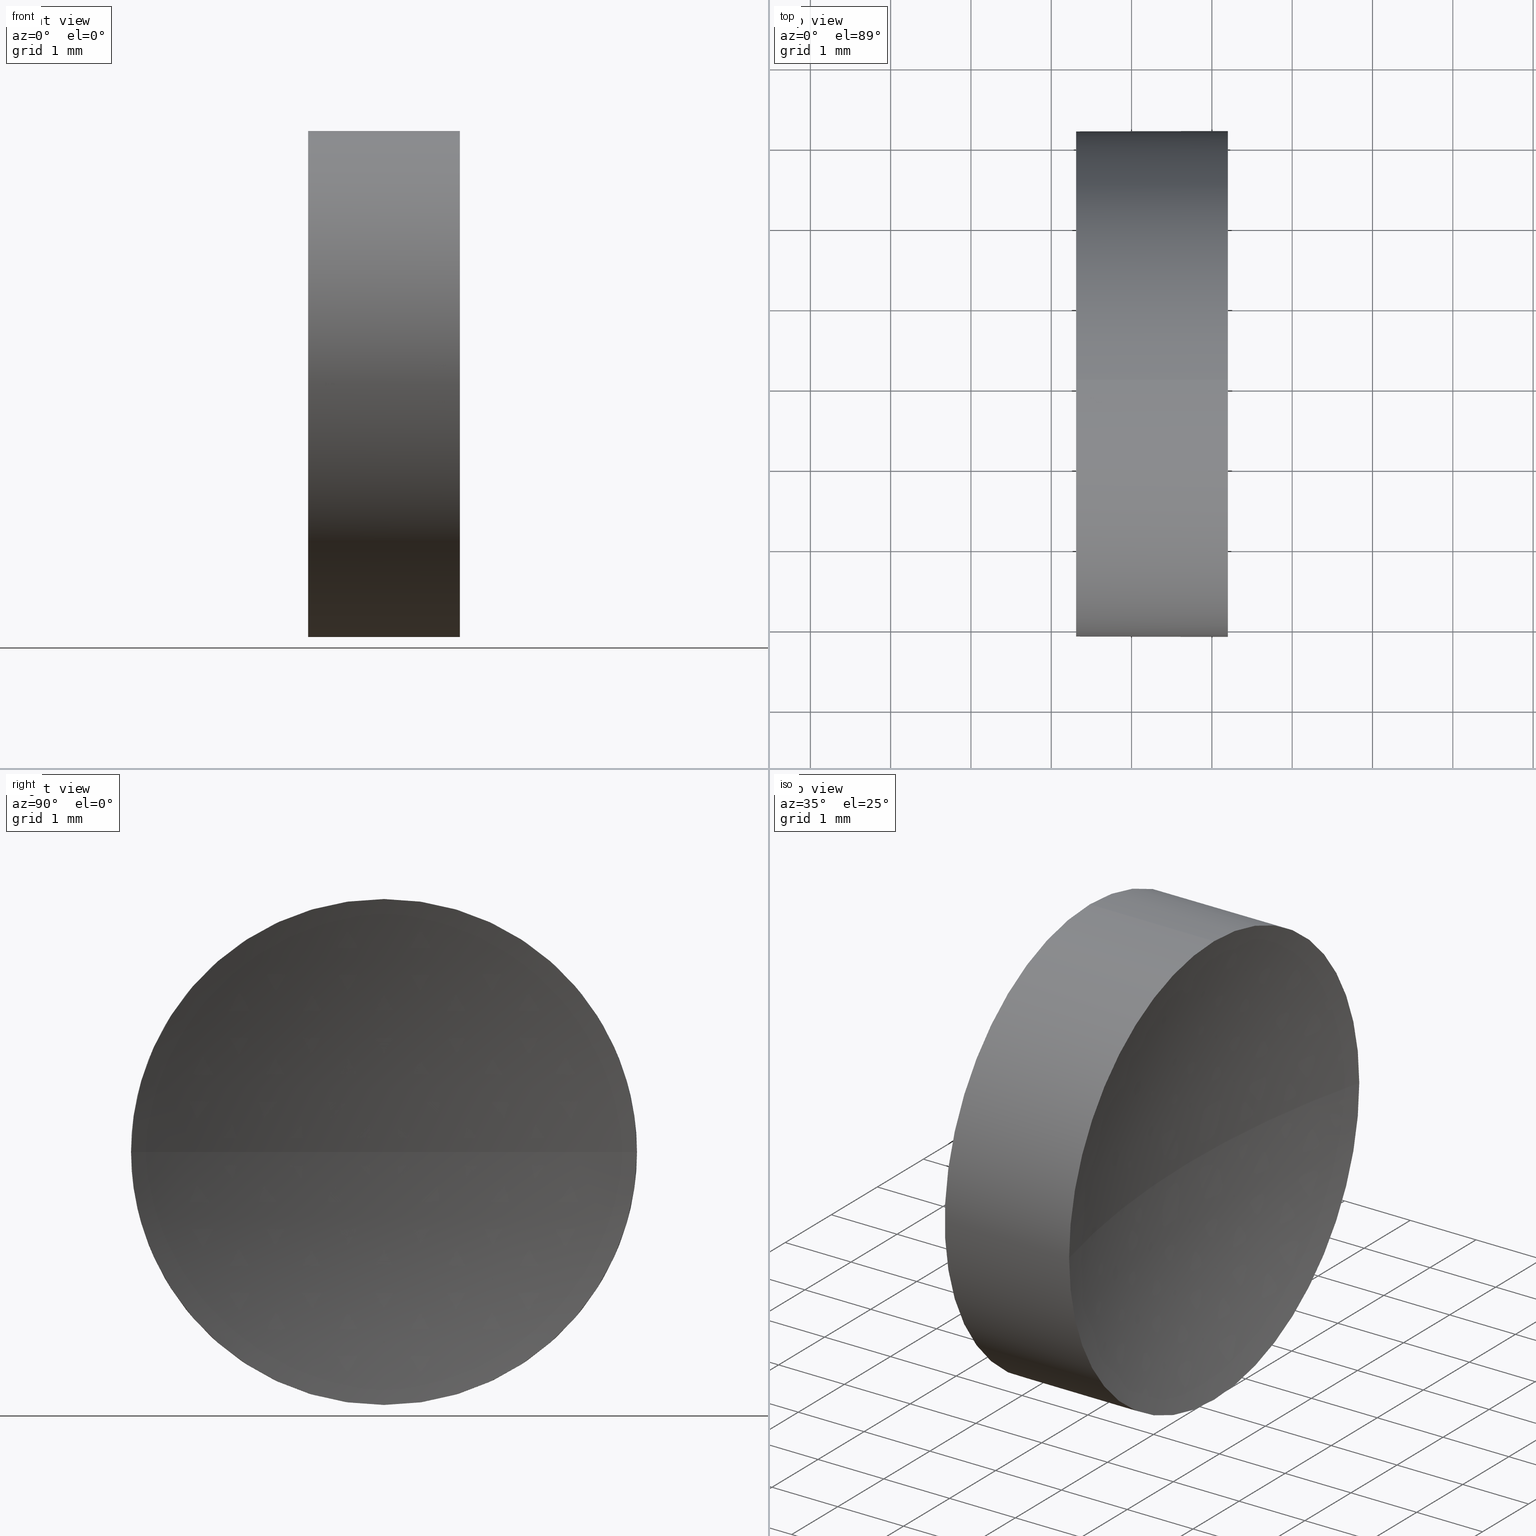
[diagram: canonical four-view strip — front | top / right | iso, engineering-drawing reading convention]
A machine part, canonical four-view strip (front | top / right | iso — engineering-drawing reading convention). The complete STEP part file that produces these views, byte-faithful:
ISO-10303-21;
HEADER;
FILE_DESCRIPTION (( 'STEP AP214' ),
    '1' );
FILE_NAME ('120128.STEP',
    '2019-06-19T02:02:49',
    ( '' ),
    ( '' ),
    'SwSTEP 2.0',
    'SolidWorks 2016',
    '' );
FILE_SCHEMA (( 'AUTOMOTIVE_DESIGN' ));
ENDSEC;

DATA;
#1 = UNCERTAINTY_MEASURE_WITH_UNIT (LENGTH_MEASURE( 1.000000000000000100E-005 ), #34, 'distance_accuracy_value', 'NONE');
#2 = STYLED_ITEM ( 'NONE', ( #180 ), #156 ) ;
#3 = VERTEX_POINT ( 'NONE', #86 ) ;
#4 = CARTESIAN_POINT ( 'NONE',  ( 36.71926883257449200, 13.03112609140304200, 0.0000000000000000000 ) ) ;
#5 = UNCERTAINTY_MEASURE_WITH_UNIT (LENGTH_MEASURE( 1.000000000000000100E-005 ), #35, 'distance_accuracy_value', 'NONE');
#6 = PLANE ( 'NONE',  #14 ) ;
#7 = CYLINDRICAL_SURFACE ( 'NONE', #36, 3.149999999999999900 ) ;
#8 = FILL_AREA_STYLE ('',( #141 ) ) ;
#9 = SPHERICAL_SURFACE ( 'NONE', #43, 12.90999999999999800 ) ;
#10 = ADVANCED_FACE ( 'NONE', ( #91 ), #9, .F. ) ;
#11 = VERTEX_POINT ( 'NONE', #151 ) ;
#12 = MECHANICAL_DESIGN_GEOMETRIC_PRESENTATION_REPRESENTATION (  '', ( #82 ), #153 ) ;
#13 = UNCERTAINTY_MEASURE_WITH_UNIT (LENGTH_MEASURE( 1.000000000000000100E-005 ), #100, 'distance_accuracy_value', 'NONE');
#14 = AXIS2_PLACEMENT_3D ( 'NONE', #122, #63, #22 ) ;
#15 = EDGE_LOOP ( 'NONE', ( #181, #186, #124, #106, #93 ) ) ;
#16 = DIRECTION ( 'NONE',  ( 0.0000000000000000000, 0.0000000000000000000, 1.000000000000000000 ) ) ;
#17 = CARTESIAN_POINT ( 'NONE',  ( 24.19946052733276100, 16.18112609140304100, 3.857637417314165200E-016 ) ) ;
#18 = SURFACE_STYLE_FILL_AREA ( #8 ) ;
#19 = AXIS2_PLACEMENT_3D ( 'NONE', #78, #162, #163 ) ;
#20 = DIRECTION ( 'NONE',  ( 0.0000000000000000000, 0.0000000000000000000, 1.000000000000000000 ) ) ;
#21 =( NAMED_UNIT ( * ) PLANE_ANGLE_UNIT ( ) SI_UNIT ( $, .RADIAN. ) );
#22 = DIRECTION ( 'NONE',  ( 0.0000000000000000000, 0.0000000000000000000, -1.000000000000000000 ) ) ;
#23 = VERTEX_POINT ( 'NONE', #84 ) ;
#24 =( NAMED_UNIT ( * ) PLANE_ANGLE_UNIT ( ) SI_UNIT ( $, .RADIAN. ) );
#25 = EDGE_CURVE ( 'NONE', #62, #32, #172, .T. ) ;
#26 = CIRCLE ( 'NONE', #128, 3.149999999999998100 ) ;
#27 =( GEOMETRIC_REPRESENTATION_CONTEXT ( 3 ) GLOBAL_UNCERTAINTY_ASSIGNED_CONTEXT ( ( #1 ) ) GLOBAL_UNIT_ASSIGNED_CONTEXT ( ( #34, #24, #79 ) ) REPRESENTATION_CONTEXT ( 'NONE', 'WORKASPACE' ) );
#28 = ORIENTED_EDGE ( 'NONE', *, *, #53, .F. ) ;
#29 = EDGE_CURVE ( 'NONE', #170, #69, #140, .T. ) ;
#30 = CARTESIAN_POINT ( 'NONE',  ( 23.80926883257449600, 13.03112609140304200, 0.0000000000000000000 ) ) ;
#31 = PRESENTATION_LAYER_ASSIGNMENT (  '', '', ( #2 ) ) ;
#32 = VERTEX_POINT ( 'NONE', #30 ) ;
#33 = DIRECTION ( 'NONE',  ( -1.000000000000000000, -0.0000000000000000000, -0.0000000000000000000 ) ) ;
#34 =( LENGTH_UNIT ( ) NAMED_UNIT ( * ) SI_UNIT ( .MILLI., .METRE. ) );
#35 =( LENGTH_UNIT ( ) NAMED_UNIT ( * ) SI_UNIT ( .MILLI., .METRE. ) );
#36 = AXIS2_PLACEMENT_3D ( 'NONE', #99, #72, #176 ) ;
#37 = SURFACE_STYLE_USAGE ( .BOTH. , #179 ) ;
#38 = ORIENTED_EDGE ( 'NONE', *, *, #136, .F. ) ;
#39 = EDGE_CURVE ( 'NONE', #62, #11, #127, .T. ) ;
#40 = ORIENTED_EDGE ( 'NONE', *, *, #53, .T. ) ;
#41 = ORIENTED_EDGE ( 'NONE', *, *, #94, .T. ) ;
#42 = CARTESIAN_POINT ( 'NONE',  ( 20.68403063513288800, 13.03112609140304000, 0.0000000000000000000 ) ) ;
#43 = AXIS2_PLACEMENT_3D ( 'NONE', #54, #115, #55 ) ;
#44 = DIRECTION ( 'NONE',  ( -1.000000000000000000, -0.0000000000000000000, -0.0000000000000000000 ) ) ;
#45 = ORIENTED_EDGE ( 'NONE', *, *, #39, .F. ) ;
#46 = AXIS2_PLACEMENT_3D ( 'NONE', #134, #107, #16 ) ;
#47 = SHAPE_DEFINITION_REPRESENTATION ( #143, #156 ) ;
#48 = DIRECTION ( 'NONE',  ( -1.000000000000000000, -0.0000000000000000000, -0.0000000000000000000 ) ) ;
#49 = FILL_AREA_STYLE_COLOUR ( '', #67 ) ;
#50 = ADVANCED_FACE ( 'NONE', ( #92 ), #83, .T. ) ;
#51 = EDGE_CURVE ( 'NONE', #3, #23, #26, .T. ) ;
#52 = FACE_OUTER_BOUND ( 'NONE', #178, .T. ) ;
#53 = EDGE_CURVE ( 'NONE', #170, #32, #90, .T. ) ;
#54 = CARTESIAN_POINT ( 'NONE',  ( 36.71926883257449200, 13.03112609140304200, 0.0000000000000000000 ) ) ;
#55 = DIRECTION ( 'NONE',  ( 0.0000000000000000000, -1.000000000000000000, 0.0000000000000000000 ) ) ;
#56 = FACE_OUTER_BOUND ( 'NONE', #102, .T. ) ;
#57 = DIRECTION ( 'NONE',  ( 0.0000000000000000000, 0.0000000000000000000, -1.000000000000000000 ) ) ;
#58 = DIRECTION ( 'NONE',  ( -1.000000000000000000, -0.0000000000000000000, -0.0000000000000000000 ) ) ;
#59 = FACE_OUTER_BOUND ( 'NONE', #15, .T. ) ;
#60 = DIRECTION ( 'NONE',  ( 0.0000000000000000000, 0.0000000000000000000, 1.000000000000000000 ) ) ;
#61 = DIRECTION ( 'NONE',  ( 0.0000000000000000000, 0.0000000000000000000, 1.000000000000000000 ) ) ;
#62 = VERTEX_POINT ( 'NONE', #17 ) ;
#63 = DIRECTION ( 'NONE',  ( 1.000000000000000000, 0.0000000000000000000, 0.0000000000000000000 ) ) ;
#64 = APPLICATION_CONTEXT ( 'automotive_design' ) ;
#65 = ORIENTED_EDGE ( 'NONE', *, *, #126, .T. ) ;
#66 = AXIS2_PLACEMENT_3D ( 'NONE', #42, #44, #95 ) ;
#67 = COLOUR_RGB ( '',1.000000000000000000, 1.000000000000000000, 1.000000000000000000 ) ;
#68 = CIRCLE ( 'NONE', #142, 3.149999999999998100 ) ;
#69 = VERTEX_POINT ( 'NONE', #98 ) ;
#70 = CARTESIAN_POINT ( 'NONE',  ( 24.19946052733276100, 13.03112609140304000, 0.0000000000000000000 ) ) ;
#71 = PRODUCT_DEFINITION ( 'δ֪', '', #80, #109 ) ;
#72 = DIRECTION ( 'NONE',  ( -1.000000000000000000, -0.0000000000000000000, -0.0000000000000000000 ) ) ;
#73 = DIRECTION ( 'NONE',  ( 0.0000000000000000000, -1.000000000000000000, 0.0000000000000000000 ) ) ;
#74 =( NAMED_UNIT ( * ) SI_UNIT ( $, .STERADIAN. ) SOLID_ANGLE_UNIT ( ) );
#75 = LINE ( 'NONE', #155, #182 ) ;
#76 = CARTESIAN_POINT ( 'NONE',  ( 22.30926883257449200, 13.03112609140304000, 0.0000000000000000000 ) ) ;
#77 = SURFACE_SIDE_STYLE ('',( #150 ) ) ;
#78 = CARTESIAN_POINT ( 'NONE',  ( 0.0000000000000000000, 0.0000000000000000000, 0.0000000000000000000 ) ) ;
#79 =( NAMED_UNIT ( * ) SI_UNIT ( $, .STERADIAN. ) SOLID_ANGLE_UNIT ( ) );
#80 = PRODUCT_DEFINITION_FORMATION_WITH_SPECIFIED_SOURCE ( '�κ�', '', #168, .NOT_KNOWN. ) ;
#81 = ADVANCED_FACE ( 'NONE', ( #59 ), #7, .T. ) ;
#82 = STYLED_ITEM ( 'NONE', ( #131 ), #184 ) ;
#83 = CYLINDRICAL_SURFACE ( 'NONE', #66, 3.149999999999999900 ) ;
#84 = CARTESIAN_POINT ( 'NONE',  ( 22.30926883257449200, 13.03112609140304000, -3.149999999999998100 ) ) ;
#85 = SPHERICAL_SURFACE ( 'NONE', #148, 12.90999999999999800 ) ;
#86 = CARTESIAN_POINT ( 'NONE',  ( 22.30926883257449200, 13.03112609140304000, 3.149999999999998100 ) ) ;
#87 = DIRECTION ( 'NONE',  ( 0.0000000000000000000, 0.0000000000000000000, 1.000000000000000000 ) ) ;
#88 = VECTOR ( 'NONE', #48, 1000.000000000000000 ) ;
#89 = DIRECTION ( 'NONE',  ( -1.000000000000000000, -0.0000000000000000000, -0.0000000000000000000 ) ) ;
#90 = CIRCLE ( 'NONE', #120, 12.90999999999999800 ) ;
#91 = FACE_OUTER_BOUND ( 'NONE', #108, .T. ) ;
#92 = FACE_OUTER_BOUND ( 'NONE', #161, .T. ) ;
#93 = ORIENTED_EDGE ( 'NONE', *, *, #136, .T. ) ;
#94 = EDGE_CURVE ( 'NONE', #23, #3, #68, .T. ) ;
#95 = DIRECTION ( 'NONE',  ( 0.0000000000000000000, 0.0000000000000000000, 1.000000000000000000 ) ) ;
#96 = DIRECTION ( 'NONE',  ( 0.0000000000000000000, 0.0000000000000000000, 1.000000000000000000 ) ) ;
#97 = DIRECTION ( 'NONE',  ( 0.0000000000000000000, 0.0000000000000000000, 1.000000000000000000 ) ) ;
#98 = CARTESIAN_POINT ( 'NONE',  ( 24.19946052733276100, 13.03112609140304000, 3.150000000000001200 ) ) ;
#99 = CARTESIAN_POINT ( 'NONE',  ( 20.68403063513288800, 13.03112609140304000, 0.0000000000000000000 ) ) ;
#100 =( LENGTH_UNIT ( ) NAMED_UNIT ( * ) SI_UNIT ( .MILLI., .METRE. ) );
#101 = PRODUCT_CONTEXT ( 'NONE', #64, 'mechanical' ) ;
#102 = EDGE_LOOP ( 'NONE', ( #103, #38, #112, #40 ) ) ;
#103 = ORIENTED_EDGE ( 'NONE', *, *, #25, .F. ) ;
#104 = ORIENTED_EDGE ( 'NONE', *, *, #123, .F. ) ;
#105 = MECHANICAL_DESIGN_GEOMETRIC_PRESENTATION_REPRESENTATION (  '', ( #2 ), #27 ) ;
#106 = ORIENTED_EDGE ( 'NONE', *, *, #183, .F. ) ;
#107 = DIRECTION ( 'NONE',  ( -1.000000000000000000, -0.0000000000000000000, -0.0000000000000000000 ) ) ;
#108 = EDGE_LOOP ( 'NONE', ( #45, #149, #28, #144 ) ) ;
#109 = PRODUCT_DEFINITION_CONTEXT ( 'detailed design', #177, 'design' ) ;
#110 = FILL_AREA_STYLE ('',( #49 ) ) ;
#111 =( NAMED_UNIT ( * ) PLANE_ANGLE_UNIT ( ) SI_UNIT ( $, .RADIAN. ) );
#112 = ORIENTED_EDGE ( 'NONE', *, *, #29, .F. ) ;
#113 = CIRCLE ( 'NONE', #146, 3.150000000000001700 ) ;
#114 = LINE ( 'NONE', #160, #88 ) ;
#115 = DIRECTION ( 'NONE',  ( 0.0000000000000000000, 0.0000000000000000000, 1.000000000000000000 ) ) ;
#116 = DIRECTION ( 'NONE',  ( -1.000000000000000000, -0.0000000000000000000, -0.0000000000000000000 ) ) ;
#117 = DIRECTION ( 'NONE',  ( -1.000000000000000000, 0.0000000000000000000, 0.0000000000000000000 ) ) ;
#118 = CIRCLE ( 'NONE', #132, 3.150000000000001700 ) ;
#119 = DIRECTION ( 'NONE',  ( -1.000000000000000000, -0.0000000000000000000, -0.0000000000000000000 ) ) ;
#120 = AXIS2_PLACEMENT_3D ( 'NONE', #139, #57, #117 ) ;
#121 = CARTESIAN_POINT ( 'NONE',  ( 24.19946052733276100, 13.03112609140304000, 0.0000000000000000000 ) ) ;
#122 = CARTESIAN_POINT ( 'NONE',  ( 22.30926883257449200, 13.03112609140304000, 0.0000000000000000000 ) ) ;
#123 = EDGE_CURVE ( 'NONE', #11, #23, #75, .T. ) ;
#124 = ORIENTED_EDGE ( 'NONE', *, *, #51, .F. ) ;
#125 =( NAMED_UNIT ( * ) SI_UNIT ( $, .STERADIAN. ) SOLID_ANGLE_UNIT ( ) );
#126 = EDGE_CURVE ( 'NONE', #11, #170, #113, .T. ) ;
#127 = CIRCLE ( 'NONE', #46, 3.150000000000001700 ) ;
#128 = AXIS2_PLACEMENT_3D ( 'NONE', #76, #171, #97 ) ;
#129 = ADVANCED_FACE ( 'NONE', ( #56 ), #85, .F. ) ;
#130 = ORIENTED_EDGE ( 'NONE', *, *, #94, .F. ) ;
#131 = PRESENTATION_STYLE_ASSIGNMENT (( #37 ) ) ;
#132 = AXIS2_PLACEMENT_3D ( 'NONE', #121, #89, #61 ) ;
#133 = CARTESIAN_POINT ( 'NONE',  ( 36.71926883257449200, 13.03112609140304200, 0.0000000000000000000 ) ) ;
#134 = CARTESIAN_POINT ( 'NONE',  ( 24.19946052733276100, 13.03112609140304000, 0.0000000000000000000 ) ) ;
#135 = DIRECTION ( 'NONE',  ( 0.0000000000000000000, -1.000000000000000000, -1.224646799147353200E-016 ) ) ;
#136 = EDGE_CURVE ( 'NONE', #69, #62, #118, .T. ) ;
#137 = CARTESIAN_POINT ( 'NONE',  ( 24.19946052733276100, 13.03112609140304000, 0.0000000000000000000 ) ) ;
#138 = PRODUCT_RELATED_PRODUCT_CATEGORY ( 'part', '', ( #168 ) ) ;
#139 = CARTESIAN_POINT ( 'NONE',  ( 36.71926883257449200, 13.03112609140304200, 0.0000000000000000000 ) ) ;
#140 = CIRCLE ( 'NONE', #173, 3.150000000000001700 ) ;
#141 = FILL_AREA_STYLE_COLOUR ( '', #169 ) ;
#142 = AXIS2_PLACEMENT_3D ( 'NONE', #157, #33, #20 ) ;
#143 = PRODUCT_DEFINITION_SHAPE ( 'NONE', 'NONE',  #71 ) ;
#144 = ORIENTED_EDGE ( 'NONE', *, *, #126, .F. ) ;
#145 = APPLICATION_PROTOCOL_DEFINITION ( 'draft international standard', 'automotive_design', 1998, #64 ) ;
#146 = AXIS2_PLACEMENT_3D ( 'NONE', #137, #119, #87 ) ;
#147 = ORIENTED_EDGE ( 'NONE', *, *, #29, .T. ) ;
#148 = AXIS2_PLACEMENT_3D ( 'NONE', #4, #60, #73 ) ;
#149 = ORIENTED_EDGE ( 'NONE', *, *, #25, .T. ) ;
#150 = SURFACE_STYLE_FILL_AREA ( #110 ) ;
#151 = CARTESIAN_POINT ( 'NONE',  ( 24.19946052733276100, 13.03112609140304000, -3.150000000000001200 ) ) ;
#152 = ORIENTED_EDGE ( 'NONE', *, *, #51, .T. ) ;
#153 =( GEOMETRIC_REPRESENTATION_CONTEXT ( 3 ) GLOBAL_UNCERTAINTY_ASSIGNED_CONTEXT ( ( #13 ) ) GLOBAL_UNIT_ASSIGNED_CONTEXT ( ( #100, #111, #125 ) ) REPRESENTATION_CONTEXT ( 'NONE', 'WORKASPACE' ) );
#154 = DIRECTION ( 'NONE',  ( 0.0000000000000000000, -1.224646799147353200E-016, 1.000000000000000000 ) ) ;
#155 = CARTESIAN_POINT ( 'NONE',  ( 20.68403063513288800, 13.03112609140304000, -3.149999999999999900 ) ) ;
#156 = ADVANCED_BREP_SHAPE_REPRESENTATION ( '120128', ( #184, #19 ), #167 ) ;
#157 = CARTESIAN_POINT ( 'NONE',  ( 22.30926883257449200, 13.03112609140304000, 0.0000000000000000000 ) ) ;
#158 = SURFACE_STYLE_USAGE ( .BOTH. , #77 ) ;
#159 = PRESENTATION_LAYER_ASSIGNMENT (  '', '', ( #82 ) ) ;
#160 = CARTESIAN_POINT ( 'NONE',  ( 20.68403063513288800, 13.03112609140304000, 3.149999999999999900 ) ) ;
#161 = EDGE_LOOP ( 'NONE', ( #104, #65, #147, #185, #130 ) ) ;
#162 = DIRECTION ( 'NONE',  ( 0.0000000000000000000, 0.0000000000000000000, 1.000000000000000000 ) ) ;
#163 = DIRECTION ( 'NONE',  ( 1.000000000000000000, 0.0000000000000000000, 0.0000000000000000000 ) ) ;
#164 = ADVANCED_FACE ( 'NONE', ( #52 ), #6, .F. ) ;
#165 = AXIS2_PLACEMENT_3D ( 'NONE', #133, #154, #135 ) ;
#166 = CLOSED_SHELL ( 'NONE', ( #81, #10, #129, #50, #164 ) ) ;
#167 =( GEOMETRIC_REPRESENTATION_CONTEXT ( 3 ) GLOBAL_UNCERTAINTY_ASSIGNED_CONTEXT ( ( #5 ) ) GLOBAL_UNIT_ASSIGNED_CONTEXT ( ( #35, #21, #74 ) ) REPRESENTATION_CONTEXT ( 'NONE', 'WORKASPACE' ) );
#168 = PRODUCT ( '120128', '120128', '', ( #101 ) ) ;
#169 = COLOUR_RGB ( '',1.000000000000000000, 1.000000000000000000, 1.000000000000000000 ) ;
#170 = VERTEX_POINT ( 'NONE', #174 ) ;
#171 = DIRECTION ( 'NONE',  ( -1.000000000000000000, -0.0000000000000000000, -0.0000000000000000000 ) ) ;
#172 = CIRCLE ( 'NONE', #165, 12.90999999999999800 ) ;
#173 = AXIS2_PLACEMENT_3D ( 'NONE', #70, #116, #96 ) ;
#174 = CARTESIAN_POINT ( 'NONE',  ( 24.19946052733276100, 9.881126091403038100, 0.0000000000000000000 ) ) ;
#175 = APPLICATION_PROTOCOL_DEFINITION ( 'draft international standard', 'automotive_design', 1998, #177 ) ;
#176 = DIRECTION ( 'NONE',  ( 0.0000000000000000000, 0.0000000000000000000, 1.000000000000000000 ) ) ;
#177 = APPLICATION_CONTEXT ( 'automotive_design' ) ;
#178 = EDGE_LOOP ( 'NONE', ( #152, #41 ) ) ;
#179 = SURFACE_SIDE_STYLE ('',( #18 ) ) ;
#180 = PRESENTATION_STYLE_ASSIGNMENT (( #158 ) ) ;
#181 = ORIENTED_EDGE ( 'NONE', *, *, #39, .T. ) ;
#182 = VECTOR ( 'NONE', #58, 1000.000000000000000 ) ;
#183 = EDGE_CURVE ( 'NONE', #69, #3, #114, .T. ) ;
#184 = MANIFOLD_SOLID_BREP ( '��ת1', #166 ) ;
#185 = ORIENTED_EDGE ( 'NONE', *, *, #183, .T. ) ;
#186 = ORIENTED_EDGE ( 'NONE', *, *, #123, .T. ) ;
ENDSEC;
END-ISO-10303-21;
